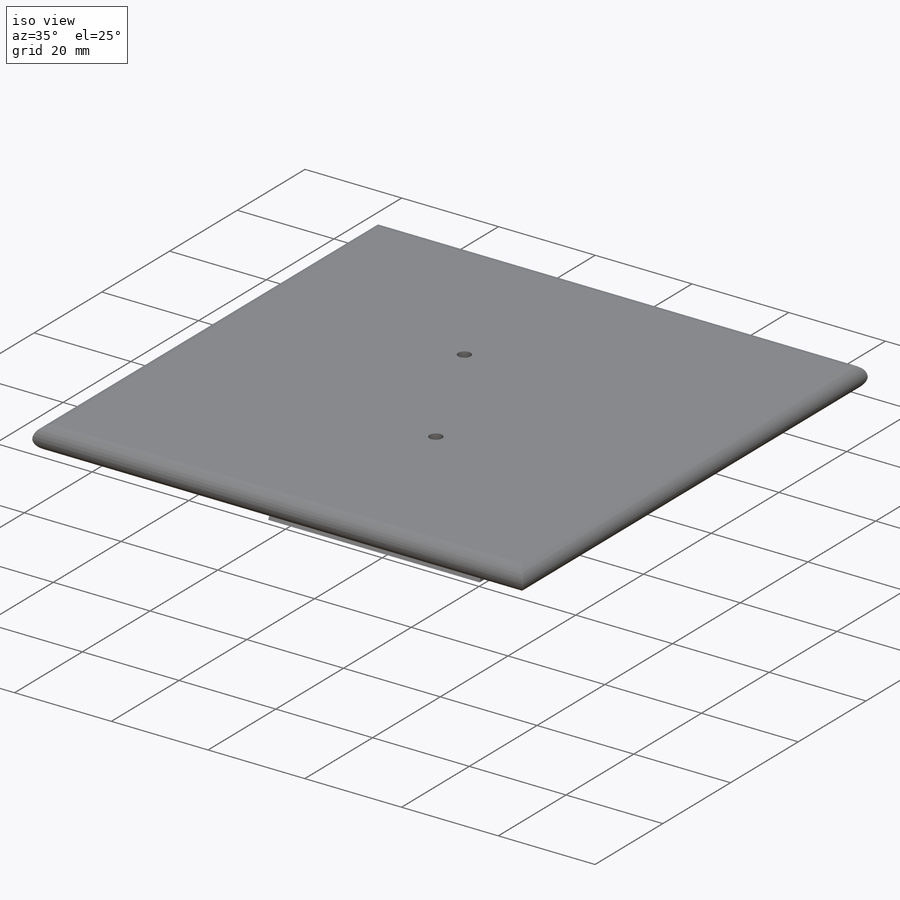
[diagram: iso view]
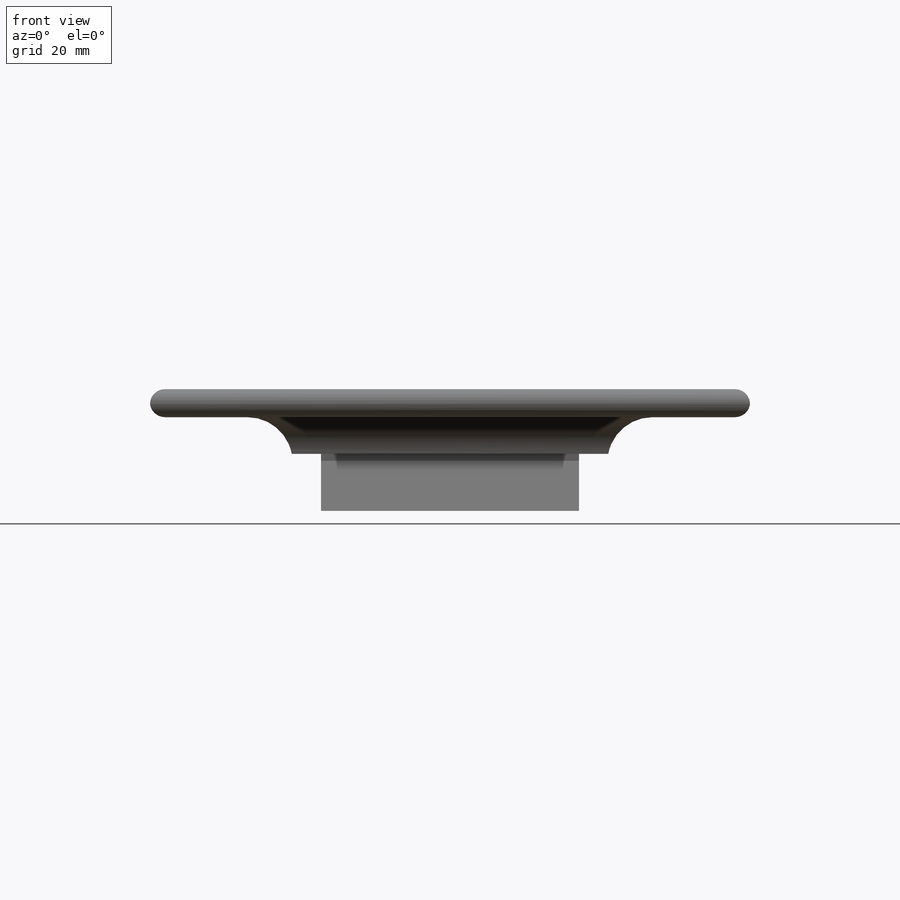
[diagram: front view]
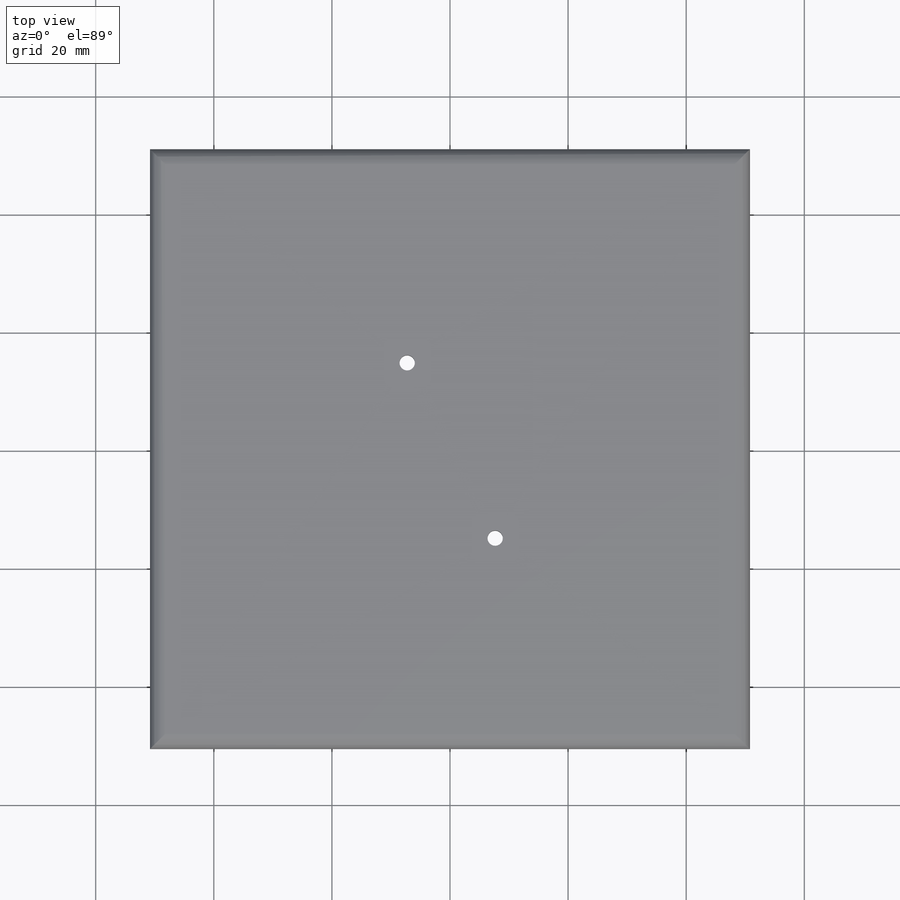
[diagram: top view]
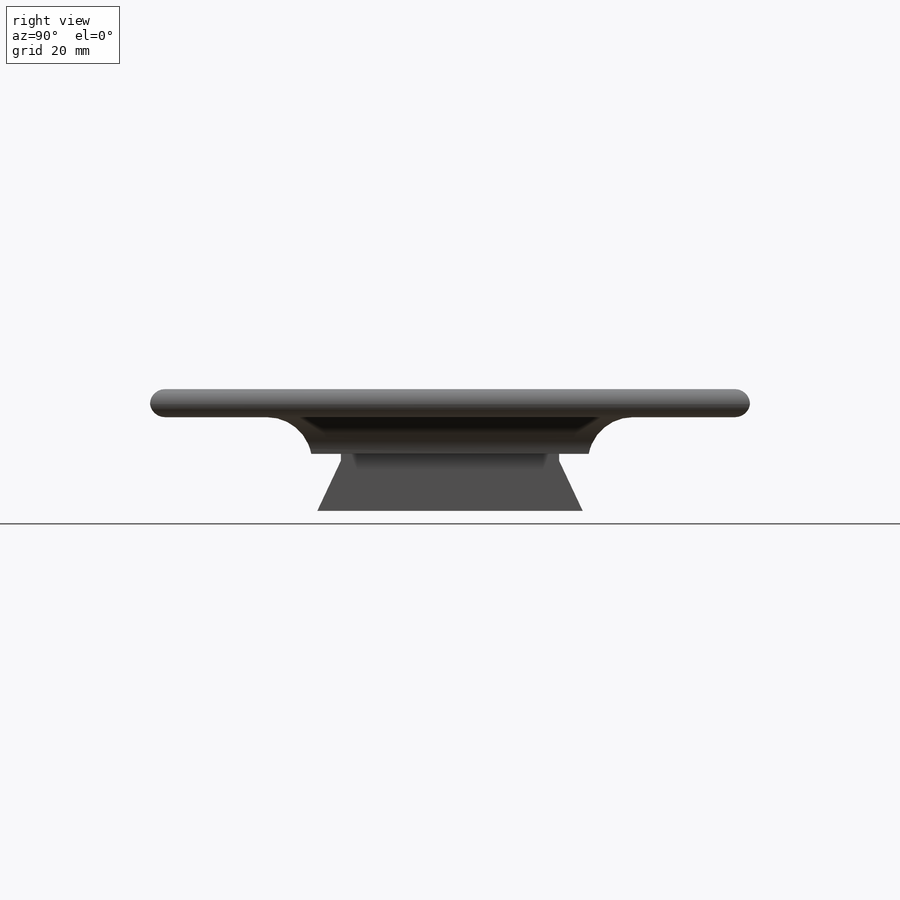
[diagram: right view]
SOLIDWORKS PART (.sldprt)
format: sldprt  version: not decoded by parser v0  size: 347,648 bytes
history: native  units: mm
features: sketch x9, fillet x5, extrude x4, cut_extrude x3, material x1, hole x1 (+13 scaffold rows collapsed)
feature tree (36):
  scaffold x13  (default folders/planes/origin — collapsed)
  material  "ABS"
  sketch  "Sketch1"  dims[D1=46.99mm D2=53.594mm]
  extrude  "Boss-Extrude1"  Depth=12.7mm
  sketch  "Sketch2"  dims[c1.D1=9.398mm c1.D2=18.542mm c1.D3=9.398mm c2.D3=64.8deg c2.D4=3.048mm c2.D5=26.797mm c3.D3=22.479mm c3.D1=9.398mm c3.D4=22.479mm c4.D4=64.8deg]
  cut_extrude  "Cut-Extrude1"  [1 undecoded]
  sketch  "Sketch3"  dims[D1=21.844mm]
  cut_extrude  "Cut-Extrude2"  [1 undecoded]
  sketch  "Sketch4"  dims[D1=0.0mm]
  extrude  "Boss-Extrude2"  Depth=3.175mm
  sketch  "Sketch5"  dims[D1=101.6mm D2=101.6mm]
  extrude  "Boss-Extrude3"  Depth=4.7625mm
  fillet  "Fillet1"  Radius=7.62mm
  sketch  "Sketch6"  dims[c1.D1=~34.415052mm c1.D2=~36.955052mm c2.D1=2.54mm]
  cut_extrude  "Cut-Extrude3"  [1 undecoded]
  hole  "Ø2.6 (2.6) Diameter Hole1"  Diameter=2.6mm Depth=20.6375mm
  sketch  "Sketch8"  dims[c1.D1=14.1mm c1.D2=15.6mm c1.D3=7.25mm c1.D4=7.65mm c2.D1=14.1mm c2.D2=14.6mm c2.D3=7.25mm c2.D4=7.65mm c2.D5=28.7mm c3.D1=29.7mm c3.D5=15.1mm]
  sketch  "Sketch7"  dims[hole-wizard template sketch: 59 standard entries collapsed; hole parameters kept: c18.Thru Hole Dia.=2.6mm c18.Thru Hole Depth=20.6375mm]
  fillet  "Fillet2"  Radius=2.54mm
  fillet  "Fillet3"  Radius=2.54mm
  fillet  "Fillet4"  Radius=2.54mm
  sketch  "Sketch9"
  extrude  "Boss-Extrude4"  [1 undecoded]
  fillet  "Fillet5"  Radius=2.54mm
decode coverage: 17 of 22 modeling features carry decoded parameters
note: ~ marks probable driven/reference dimensions
note: 4 parameter values undecoded
summary: no parameter record found for 4 features
note: suppression state not decoded; provenance and decode notes live in map.json
